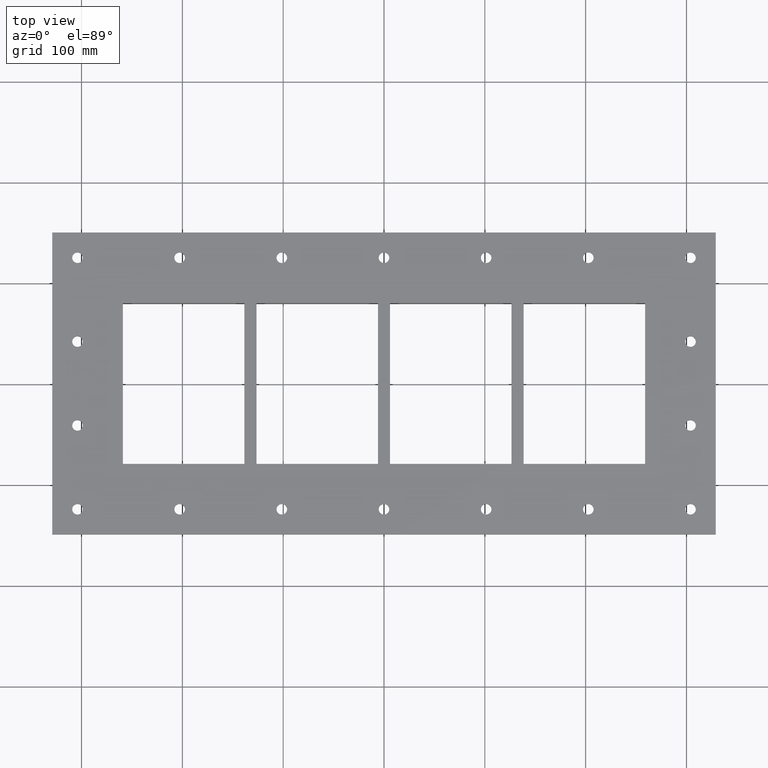
[diagram: clean part render]
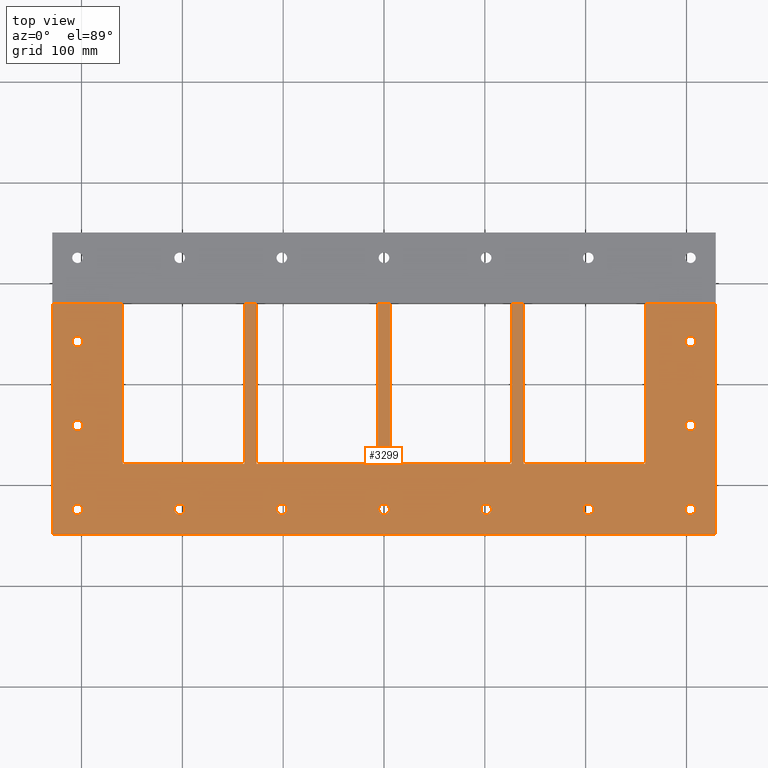
[diagram: same view with one face highlighted and labeled with its STEP entity id]
A machine part, top view. The second image highlights one B-rep face of the part: STEP entity #3299.
In plain terms, the highlighted planar face has unit normal (0, 0, 1).
Its self-contained STEP definition (entity closure, byte-faithful):
#292=FACE_BOUND('',#793,.T.);
#293=FACE_BOUND('',#794,.T.);
#294=FACE_BOUND('',#795,.T.);
#295=FACE_BOUND('',#796,.T.);
#296=FACE_BOUND('',#797,.T.);
#297=FACE_BOUND('',#798,.T.);
#298=FACE_BOUND('',#799,.T.);
#299=FACE_BOUND('',#800,.T.);
#300=FACE_BOUND('',#801,.T.);
#301=FACE_BOUND('',#802,.T.);
#302=FACE_BOUND('',#803,.T.);
#426=CIRCLE('',#3738,5.25);
#427=CIRCLE('',#3739,5.25);
#428=CIRCLE('',#3740,5.25);
#429=CIRCLE('',#3741,5.25);
#430=CIRCLE('',#3742,5.25);
#431=CIRCLE('',#3743,5.25);
#432=CIRCLE('',#3744,5.25);
#433=CIRCLE('',#3745,5.25);
#434=CIRCLE('',#3746,5.25);
#435=CIRCLE('',#3747,5.25);
#436=CIRCLE('',#3748,5.25);
#592=FACE_OUTER_BOUND('',#792,.T.);
#792=EDGE_LOOP('',(#2468,#2469,#2470,#2471,#2472,#2473,#2474,#2475,#2476,
#2477,#2478,#2479,#2480,#2481,#2482,#2483,#2484,#2485,#2486,#2487));
#793=EDGE_LOOP('',(#2488));
#794=EDGE_LOOP('',(#2489));
#795=EDGE_LOOP('',(#2490));
#796=EDGE_LOOP('',(#2491));
#797=EDGE_LOOP('',(#2492));
#798=EDGE_LOOP('',(#2493));
#799=EDGE_LOOP('',(#2494));
#800=EDGE_LOOP('',(#2495));
#801=EDGE_LOOP('',(#2496));
#802=EDGE_LOOP('',(#2497));
#803=EDGE_LOOP('',(#2498));
#1083=LINE('',#5225,#1342);
#1088=LINE('',#5235,#1347);
#1091=LINE('',#5242,#1350);
#1114=LINE('',#5288,#1373);
#1115=LINE('',#5290,#1374);
#1116=LINE('',#5292,#1375);
#1117=LINE('',#5294,#1376);
#1118=LINE('',#5296,#1377);
#1119=LINE('',#5298,#1378);
#1120=LINE('',#5300,#1379);
#1121=LINE('',#5302,#1380);
#1122=LINE('',#5304,#1381);
#1123=LINE('',#5306,#1382);
#1124=LINE('',#5308,#1383);
#1125=LINE('',#5310,#1384);
#1126=LINE('',#5312,#1385);
#1127=LINE('',#5314,#1386);
#1128=LINE('',#5316,#1387);
#1129=LINE('',#5317,#1388);
#1130=LINE('',#5318,#1389);
#1342=VECTOR('',#4227,10.);
#1347=VECTOR('',#4234,10.);
#1350=VECTOR('',#4239,10.);
#1373=VECTOR('',#4270,10.);
#1374=VECTOR('',#4271,10.);
#1375=VECTOR('',#4272,10.);
#1376=VECTOR('',#4273,10.);
#1377=VECTOR('',#4274,10.);
#1378=VECTOR('',#4275,10.);
#1379=VECTOR('',#4276,10.);
#1380=VECTOR('',#4277,10.);
#1381=VECTOR('',#4278,10.);
#1382=VECTOR('',#4279,10.);
#1383=VECTOR('',#4280,10.);
#1384=VECTOR('',#4281,10.);
#1385=VECTOR('',#4282,10.);
#1386=VECTOR('',#4283,10.);
#1387=VECTOR('',#4284,10.);
#1388=VECTOR('',#4285,10.);
#1389=VECTOR('',#4286,10.);
#1615=VERTEX_POINT('',#5223);
#1616=VERTEX_POINT('',#5224);
#1619=VERTEX_POINT('',#5232);
#1620=VERTEX_POINT('',#5234);
#1622=VERTEX_POINT('',#5240);
#1623=VERTEX_POINT('',#5241);
#1643=VERTEX_POINT('',#5289);
#1644=VERTEX_POINT('',#5291);
#1645=VERTEX_POINT('',#5293);
#1646=VERTEX_POINT('',#5295);
#1647=VERTEX_POINT('',#5297);
#1648=VERTEX_POINT('',#5299);
#1649=VERTEX_POINT('',#5301);
#1650=VERTEX_POINT('',#5303);
#1651=VERTEX_POINT('',#5305);
#1652=VERTEX_POINT('',#5307);
#1653=VERTEX_POINT('',#5309);
#1654=VERTEX_POINT('',#5311);
#1655=VERTEX_POINT('',#5313);
#1656=VERTEX_POINT('',#5315);
#1657=VERTEX_POINT('',#5319);
#1658=VERTEX_POINT('',#5321);
#1659=VERTEX_POINT('',#5323);
#1660=VERTEX_POINT('',#5325);
#1661=VERTEX_POINT('',#5327);
#1662=VERTEX_POINT('',#5329);
#1663=VERTEX_POINT('',#5331);
#1664=VERTEX_POINT('',#5333);
#1665=VERTEX_POINT('',#5335);
#1666=VERTEX_POINT('',#5337);
#1667=VERTEX_POINT('',#5339);
#1929=EDGE_CURVE('',#1615,#1616,#1083,.T.);
#1934=EDGE_CURVE('',#1620,#1619,#1088,.T.);
#1937=EDGE_CURVE('',#1622,#1623,#1091,.T.);
#1962=EDGE_CURVE('',#1619,#1622,#1114,.T.);
#1963=EDGE_CURVE('',#1623,#1643,#1115,.T.);
#1964=EDGE_CURVE('',#1643,#1644,#1116,.T.);
#1965=EDGE_CURVE('',#1644,#1645,#1117,.T.);
#1966=EDGE_CURVE('',#1645,#1646,#1118,.T.);
#1967=EDGE_CURVE('',#1646,#1647,#1119,.T.);
#1968=EDGE_CURVE('',#1647,#1648,#1120,.T.);
#1969=EDGE_CURVE('',#1648,#1649,#1121,.T.);
#1970=EDGE_CURVE('',#1649,#1650,#1122,.T.);
#1971=EDGE_CURVE('',#1650,#1651,#1123,.T.);
#1972=EDGE_CURVE('',#1651,#1652,#1124,.T.);
#1973=EDGE_CURVE('',#1652,#1653,#1125,.T.);
#1974=EDGE_CURVE('',#1653,#1654,#1126,.T.);
#1975=EDGE_CURVE('',#1654,#1655,#1127,.T.);
#1976=EDGE_CURVE('',#1655,#1656,#1128,.T.);
#1977=EDGE_CURVE('',#1656,#1615,#1129,.T.);
#1978=EDGE_CURVE('',#1616,#1620,#1130,.T.);
#1979=EDGE_CURVE('',#1657,#1657,#426,.T.);
#1980=EDGE_CURVE('',#1658,#1658,#427,.T.);
#1981=EDGE_CURVE('',#1659,#1659,#428,.T.);
#1982=EDGE_CURVE('',#1660,#1660,#429,.T.);
#1983=EDGE_CURVE('',#1661,#1661,#430,.T.);
#1984=EDGE_CURVE('',#1662,#1662,#431,.T.);
#1985=EDGE_CURVE('',#1663,#1663,#432,.T.);
#1986=EDGE_CURVE('',#1664,#1664,#433,.T.);
#1987=EDGE_CURVE('',#1665,#1665,#434,.T.);
#1988=EDGE_CURVE('',#1666,#1666,#435,.T.);
#1989=EDGE_CURVE('',#1667,#1667,#436,.T.);
#2468=ORIENTED_EDGE('',*,*,#1934,.T.);
#2469=ORIENTED_EDGE('',*,*,#1962,.T.);
#2470=ORIENTED_EDGE('',*,*,#1937,.T.);
#2471=ORIENTED_EDGE('',*,*,#1963,.T.);
#2472=ORIENTED_EDGE('',*,*,#1964,.T.);
#2473=ORIENTED_EDGE('',*,*,#1965,.T.);
#2474=ORIENTED_EDGE('',*,*,#1966,.T.);
#2475=ORIENTED_EDGE('',*,*,#1967,.T.);
#2476=ORIENTED_EDGE('',*,*,#1968,.T.);
#2477=ORIENTED_EDGE('',*,*,#1969,.T.);
#2478=ORIENTED_EDGE('',*,*,#1970,.T.);
#2479=ORIENTED_EDGE('',*,*,#1971,.T.);
#2480=ORIENTED_EDGE('',*,*,#1972,.T.);
#2481=ORIENTED_EDGE('',*,*,#1973,.T.);
#2482=ORIENTED_EDGE('',*,*,#1974,.T.);
#2483=ORIENTED_EDGE('',*,*,#1975,.T.);
#2484=ORIENTED_EDGE('',*,*,#1976,.T.);
#2485=ORIENTED_EDGE('',*,*,#1977,.T.);
#2486=ORIENTED_EDGE('',*,*,#1929,.T.);
#2487=ORIENTED_EDGE('',*,*,#1978,.T.);
#2488=ORIENTED_EDGE('',*,*,#1979,.T.);
#2489=ORIENTED_EDGE('',*,*,#1980,.T.);
#2490=ORIENTED_EDGE('',*,*,#1981,.T.);
#2491=ORIENTED_EDGE('',*,*,#1982,.T.);
#2492=ORIENTED_EDGE('',*,*,#1983,.T.);
#2493=ORIENTED_EDGE('',*,*,#1984,.T.);
#2494=ORIENTED_EDGE('',*,*,#1985,.T.);
#2495=ORIENTED_EDGE('',*,*,#1986,.T.);
#2496=ORIENTED_EDGE('',*,*,#1987,.T.);
#2497=ORIENTED_EDGE('',*,*,#1988,.T.);
#2498=ORIENTED_EDGE('',*,*,#1989,.T.);
#3187=PLANE('',#3737);
#3299=ADVANCED_FACE('',(#592,#292,#293,#294,#295,#296,#297,#298,#299,#300,
#301,#302),#3187,.T.);
#3737=AXIS2_PLACEMENT_3D('',#5287,#4268,#4269);
#3738=AXIS2_PLACEMENT_3D('',#5320,#4287,#4288);
#3739=AXIS2_PLACEMENT_3D('',#5322,#4289,#4290);
#3740=AXIS2_PLACEMENT_3D('',#5324,#4291,#4292);
#3741=AXIS2_PLACEMENT_3D('',#5326,#4293,#4294);
#3742=AXIS2_PLACEMENT_3D('',#5328,#4295,#4296);
#3743=AXIS2_PLACEMENT_3D('',#5330,#4297,#4298);
#3744=AXIS2_PLACEMENT_3D('',#5332,#4299,#4300);
#3745=AXIS2_PLACEMENT_3D('',#5334,#4301,#4302);
#3746=AXIS2_PLACEMENT_3D('',#5336,#4303,#4304);
#3747=AXIS2_PLACEMENT_3D('',#5338,#4305,#4306);
#3748=AXIS2_PLACEMENT_3D('',#5340,#4307,#4308);
#4227=DIRECTION('',(-2.22740669517273E-16,1.,0.));
#4234=DIRECTION('',(2.37242983559299E-16,-1.,0.));
#4239=DIRECTION('',(-2.37242983559299E-16,1.,0.));
#4268=DIRECTION('center_axis',(0.,0.,1.));
#4269=DIRECTION('ref_axis',(1.,0.,0.));
#4270=DIRECTION('',(1.,-2.69963045501558E-17,0.));
#4271=DIRECTION('',(-1.,0.,0.));
#4272=DIRECTION('',(4.45481339034546E-16,-1.,0.));
#4273=DIRECTION('',(-1.,7.37077526722096E-17,0.));
#4274=DIRECTION('',(-2.22740669517273E-16,1.,0.));
#4275=DIRECTION('',(-1.,0.,0.));
#4276=DIRECTION('',(4.45481339034546E-16,-1.,0.));
#4277=DIRECTION('',(-1.,7.37077526722096E-17,0.));
#4278=DIRECTION('',(-2.22740669517273E-16,1.,0.));
#4279=DIRECTION('',(-1.,0.,0.));
#4280=DIRECTION('',(4.45481339034546E-16,-1.,0.));
#4281=DIRECTION('',(-1.,7.37077526722096E-17,0.));
#4282=DIRECTION('',(-2.22740669517273E-16,1.,0.));
#4283=DIRECTION('',(-1.,0.,0.));
#4284=DIRECTION('',(4.45481339034546E-16,-1.,0.));
#4285=DIRECTION('',(-1.,7.37077526722096E-17,0.));
#4286=DIRECTION('',(-1.,0.,0.));
#4287=DIRECTION('center_axis',(0.,0.,-1.));
#4288=DIRECTION('ref_axis',(1.,0.,0.));
#4289=DIRECTION('center_axis',(0.,0.,-1.));
#4290=DIRECTION('ref_axis',(1.,0.,0.));
#4291=DIRECTION('center_axis',(0.,0.,-1.));
#4292=DIRECTION('ref_axis',(1.,0.,0.));
#4293=DIRECTION('center_axis',(0.,0.,-1.));
#4294=DIRECTION('ref_axis',(1.,0.,0.));
#4295=DIRECTION('center_axis',(0.,0.,-1.));
#4296=DIRECTION('ref_axis',(1.,0.,0.));
#4297=DIRECTION('center_axis',(0.,0.,-1.));
#4298=DIRECTION('ref_axis',(1.,0.,0.));
#4299=DIRECTION('center_axis',(0.,0.,-1.));
#4300=DIRECTION('ref_axis',(1.,0.,0.));
#4301=DIRECTION('center_axis',(0.,0.,-1.));
#4302=DIRECTION('ref_axis',(1.,0.,0.));
#4303=DIRECTION('center_axis',(0.,0.,-1.));
#4304=DIRECTION('ref_axis',(1.,0.,0.));
#4305=DIRECTION('center_axis',(0.,0.,-1.));
#4306=DIRECTION('ref_axis',(1.,0.,0.));
#4307=DIRECTION('center_axis',(0.,0.,-1.));
#4308=DIRECTION('ref_axis',(1.,0.,0.));
#5223=CARTESIAN_POINT('',(-259.,-79.75,0.));
#5224=CARTESIAN_POINT('',(-259.,79.25,0.));
#5225=CARTESIAN_POINT('',(-259.,-39.875,0.));
#5232=CARTESIAN_POINT('',(-329.,-149.75,0.));
#5234=CARTESIAN_POINT('',(-329.,79.25,0.));
#5235=CARTESIAN_POINT('',(-329.,149.75,0.));
#5240=CARTESIAN_POINT('',(329.,-149.75,0.));
#5241=CARTESIAN_POINT('',(329.,79.25,0.));
#5242=CARTESIAN_POINT('',(329.,-149.75,0.));
#5287=CARTESIAN_POINT('Origin',(0.,-3.5527136788005E-14,0.));
#5288=CARTESIAN_POINT('',(-329.,-149.75,0.));
#5289=CARTESIAN_POINT('',(259.,79.25,0.));
#5290=CARTESIAN_POINT('',(164.5,79.25,0.));
#5291=CARTESIAN_POINT('',(259.,-79.75,0.));
#5292=CARTESIAN_POINT('',(259.,39.875,0.));
#5293=CARTESIAN_POINT('',(138.5,-79.75,0.));
#5294=CARTESIAN_POINT('',(129.5,-79.75,0.));
#5295=CARTESIAN_POINT('',(138.5,79.25,0.));
#5296=CARTESIAN_POINT('',(138.5,-39.875,0.));
#5297=CARTESIAN_POINT('',(126.5,79.25,0.));
#5298=CARTESIAN_POINT('',(164.5,79.25,0.));
#5299=CARTESIAN_POINT('',(126.5,-79.75,0.));
#5300=CARTESIAN_POINT('',(126.5,39.875,0.));
#5301=CARTESIAN_POINT('',(5.99999999999998,-79.75,0.));
#5302=CARTESIAN_POINT('',(63.25,-79.75,0.));
#5303=CARTESIAN_POINT('',(6.00000000000001,79.25,0.));
#5304=CARTESIAN_POINT('',(5.99999999999997,-39.875,0.));
#5305=CARTESIAN_POINT('',(-6.00000000000009,79.25,0.));
#5306=CARTESIAN_POINT('',(164.5,79.25,0.));
#5307=CARTESIAN_POINT('',(-6.00000000000001,-79.75,0.));
#5308=CARTESIAN_POINT('',(-6.00000000000007,39.875,0.));
#5309=CARTESIAN_POINT('',(-126.5,-79.75,0.));
#5310=CARTESIAN_POINT('',(-3.00000000000001,-79.75,0.));
#5311=CARTESIAN_POINT('',(-126.5,79.25,0.));
#5312=CARTESIAN_POINT('',(-126.5,-39.875,0.));
#5313=CARTESIAN_POINT('',(-138.5,79.25,0.));
#5314=CARTESIAN_POINT('',(164.5,79.25,0.));
#5315=CARTESIAN_POINT('',(-138.5,-79.75,0.));
#5316=CARTESIAN_POINT('',(-138.5,39.875,0.));
#5317=CARTESIAN_POINT('',(-69.25,-79.75,0.));
#5318=CARTESIAN_POINT('',(164.5,79.25,0.));
#5319=CARTESIAN_POINT('',(-309.25,-124.75,0.));
#5320=CARTESIAN_POINT('Origin',(-304.,-124.75,0.));
#5321=CARTESIAN_POINT('',(-309.25,-41.5833333333334,0.));
#5322=CARTESIAN_POINT('Origin',(-304.,-41.5833333333334,0.));
#5323=CARTESIAN_POINT('',(-309.25,41.5833333333332,0.));
#5324=CARTESIAN_POINT('Origin',(-304.,41.5833333333332,0.));
#5325=CARTESIAN_POINT('',(-207.916666666667,-124.75,0.));
#5326=CARTESIAN_POINT('Origin',(-202.666666666667,-124.75,0.));
#5327=CARTESIAN_POINT('',(-106.583333333333,-124.75,0.));
#5328=CARTESIAN_POINT('Origin',(-101.333333333333,-124.75,0.));
#5329=CARTESIAN_POINT('',(-5.24999999999991,-124.75,0.));
#5330=CARTESIAN_POINT('Origin',(8.88178419700125E-14,-124.75,0.));
#5331=CARTESIAN_POINT('',(96.0833333333334,-124.75,0.));
#5332=CARTESIAN_POINT('Origin',(101.333333333333,-124.75,0.));
#5333=CARTESIAN_POINT('',(197.416666666667,-124.75,0.));
#5334=CARTESIAN_POINT('Origin',(202.666666666667,-124.75,0.));
#5335=CARTESIAN_POINT('',(298.75,-124.75,0.));
#5336=CARTESIAN_POINT('Origin',(304.,-124.75,0.));
#5337=CARTESIAN_POINT('',(298.75,41.5833333333332,0.));
#5338=CARTESIAN_POINT('Origin',(304.,41.5833333333332,0.));
#5339=CARTESIAN_POINT('',(298.75,-41.5833333333334,0.));
#5340=CARTESIAN_POINT('Origin',(304.,-41.5833333333334,0.));